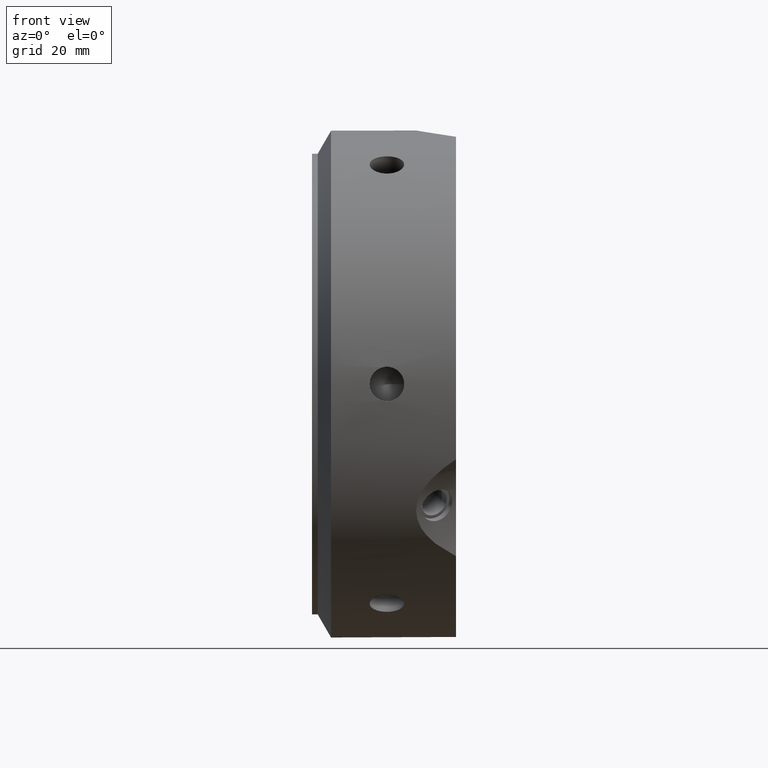
[diagram: clean part render]
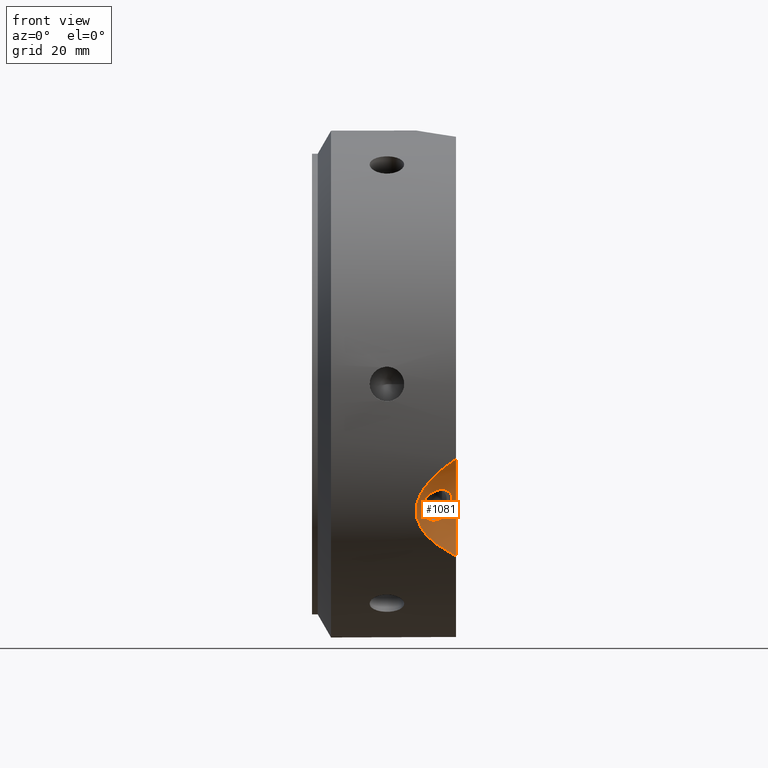
[diagram: same view with one face highlighted and labeled with its STEP entity id]
A machine part, front view. The second image highlights one B-rep face of the part: STEP entity #1081.
In plain terms, the highlighted cylindrical surface (partial cylindrical patch) has radius 20 mm, axis along (-0.866, -0.433, -0.25).
Its self-contained STEP definition (entity closure, byte-faithful):
#985=CARTESIAN_POINT('',(21.81247336968881,-34.943710054533199,-23.696597048525678));
#986=VERTEX_POINT('',#985);
#987=CARTESIAN_POINT('',(21.81247336968881,-34.943710054533199,-23.696597048525678));
#988=CARTESIAN_POINT('',(22.144691152481823,-34.777601163136694,-23.600694035363116));
#989=CARTESIAN_POINT('',(22.492531710719959,-34.629753170844943,-23.426667146129034));
#990=CARTESIAN_POINT('',(23.120996924315325,-34.426927585184394,-22.949936497065782));
#991=CARTESIAN_POINT('',(23.401997002324613,-34.37240671364134,-22.64753356793571));
#992=CARTESIAN_POINT('',(23.841108176952453,-34.364637868806483,-22.018452590361459));
#993=CARTESIAN_POINT('',(24.028717986781444,-34.410939970609668,-21.649625891148673));
#994=CARTESIAN_POINT('',(24.276467167295522,-34.618756389377957,-20.902101883844342));
#995=CARTESIAN_POINT('',(24.336885557231327,-34.7807709219326,-20.523636240870545));
#996=CARTESIAN_POINT('',(24.336885557231327,-35.164375823591165,-19.859213061165448));
#997=CARTESIAN_POINT('',(24.276467167295522,-35.411129418588764,-19.529671538703965));
#998=CARTESIAN_POINT('',(24.028717986781444,-35.954595989468913,-18.975935237074964));
#999=CARTESIAN_POINT('',(23.841108176952453,-36.250858229679551,-18.751423091058399));
#1000=CARTESIAN_POINT('',(23.401997002324613,-36.799542759713837,-18.443610619256315));
#1001=CARTESIAN_POINT('',(23.120996924315325,-37.088691814290826,-18.339625614484032));
#1002=CARTESIAN_POINT('',(22.492531710719959,-37.602965459972516,-18.2769123996719));
#1003=CARTESIAN_POINT('',(22.144691152481826,-37.827601163136691,-18.317939072278037));
#1004=CARTESIAN_POINT('',(21.480255586895808,-38.1598189459297,-18.509745098603162));
#1005=CARTESIAN_POINT('',(21.120093460048786,-38.289184585308107,-18.673101196407465));
#1006=CARTESIAN_POINT('',(20.447311237579978,-38.425534657658503,-19.111452189966577));
#1007=CARTESIAN_POINT('',(20.13497623551531,-38.433053143118478,-19.386718278839041));
#1008=CARTESIAN_POINT('',(19.637193960766819,-38.352815337772363,-19.964988593240829));
#1009=CARTESIAN_POINT('',(19.418408986648604,-38.259750489535335,-20.306816808211995));
#1010=CARTESIAN_POINT('',(19.126709320335632,-37.986008342068708,-21.016278578305815));
#1011=CARTESIAN_POINT('',(19.054130594146251,-37.805753305133706,-21.38421306116545));
#1012=CARTESIAN_POINT('',(19.054130594146251,-37.422148403475141,-22.04863624087055));
#1013=CARTESIAN_POINT('',(19.126709320335632,-37.193635312857907,-22.388708923446181));
#1014=CARTESIAN_POINT('',(19.418408986648604,-36.716094470676104,-22.980507462285701));
#1015=CARTESIAN_POINT('',(19.637193960766819,-36.466594976899295,-23.232018092543889));
#1016=CARTESIAN_POINT('',(20.13497623551531,-36.005917097045995,-23.590641227518432));
#1017=CARTESIAN_POINT('',(20.447311237579967,-35.763770428552071,-23.721763072548331));
#1018=CARTESIAN_POINT('',(21.120093460048782,-35.315972296180526,-23.822855942864607));
#1019=CARTESIAN_POINT('',(21.480255586895808,-35.109818945929696,-23.792500061688237));
#1020=CARTESIAN_POINT('',(21.812473369688817,-34.943710054533192,-23.696597048525675));
#1021=B_SPLINE_CURVE_WITH_KNOTS('',3,(#987,#988,#989,#990,#991,#992,#993,#994,#995,#996,#997,#998,#999,#1000,#1001,#1002,#1003,#1004,#1005,#1006,#1007,#1008,#1009,#1010,#1011,#1012,#1013,#1014,#1015,#1016,#1017,#1018,#1019,#1020),.UNSPECIFIED.,.T.,.U.,(4,2,2,2,2,2,2,2,2,2,2,2,2,2,2,2,4),(0.0,0.115083615795075,0.230167231590149,0.345248702087718,0.460330172585288,0.575411643082857,0.690493113580426,0.805576729375501,0.920660345170575,1.03574396096565,1.150827576760724,1.265909047258294,1.380990517755863,1.496071988253432,1.611153458751002,1.726237074546076,1.84132069034115),.UNSPECIFIED.);
#1022=EDGE_CURVE('',#986,#986,#1021,.T.);
#1039=CARTESIAN_POINT('',(28.32150757575118,-52.980262363501971,-30.588168737304848));
#1040=DIRECTION('',(-0.866025403784438,-0.43301270189222,-0.25));
#1041=DIRECTION('',(-0.5,0.75,0.433012701892219));
#1042=AXIS2_PLACEMENT_3D('',#1039,#1040,#1041);
#1043=CYLINDRICAL_SURFACE('',#1042,20.000000000000014);
#1044=CARTESIAN_POINT('',(24.999999999999986,-42.024462475996096,-13.036278364763351));
#1045=VERTEX_POINT('',#1044);
#1046=CARTESIAN_POINT('',(24.999999999999986,-32.301979472688572,-29.876112902216821));
#1047=VERTEX_POINT('',#1046);
#1048=CARTESIAN_POINT('',(24.999999999999993,-54.641016151377571,-31.547005383792509));
#1049=DIRECTION('',(-1.0,0.0,0.0));
#1050=DIRECTION('',(0.0,0.866025403784439,0.5));
#1051=AXIS2_PLACEMENT_3D('',#1048,#1049,#1050);
#1052=ELLIPSE('',#1051,23.094010767585047,20.000000000000011);
#1053=EDGE_CURVE('',#1045,#1047,#1052,.T.);
#1054=ORIENTED_EDGE('',*,*,#1053,.F.);
#1055=CARTESIAN_POINT('',(24.999999999999979,-32.301979472688565,-29.876112902216828));
#1056=CARTESIAN_POINT('',(24.376666182780035,-32.590337764459399,-29.564340629429964));
#1057=CARTESIAN_POINT('',(23.774628823260887,-32.886169427186694,-29.235504242196416));
#1058=CARTESIAN_POINT('',(21.90366000109314,-33.87458668116966,-28.099791824648115));
#1059=CARTESIAN_POINT('',(20.595581938138125,-34.68178519423298,-27.115451977279147));
#1060=CARTESIAN_POINT('',(19.154201130648236,-35.955937188094978,-25.371028613150955));
#1061=CARTESIAN_POINT('',(18.759557593973238,-36.391556658702243,-24.744326592999396));
#1062=CARTESIAN_POINT('',(18.218063369410423,-37.258376017995559,-23.418806784282879));
#1063=CARTESIAN_POINT('',(18.071796769724475,-37.68957135990761,-22.71974748914721));
#1064=CARTESIAN_POINT('',(18.071796769724475,-38.520664173123016,-21.280252510852776));
#1065=CARTESIAN_POINT('',(18.218063369410441,-38.910469610506119,-20.557296743195593));
#1066=CARTESIAN_POINT('',(18.759557593973259,-39.624993758427458,-19.143849253197168));
#1067=CARTESIAN_POINT('',(19.154201130648236,-39.949923893178109,-18.453240715192372));
#1068=CARTESIAN_POINT('',(20.595581938138125,-40.823562844537229,-16.47758103816119));
#1069=CARTESIAN_POINT('',(21.90366000109314,-41.272426901784385,-15.286356696266839));
#1070=CARTESIAN_POINT('',(23.774628823260887,-41.761774079783166,-13.862506036004582));
#1071=CARTESIAN_POINT('',(24.376666182780035,-41.898638913452473,-13.441890107222186));
#1072=CARTESIAN_POINT('',(24.999999999999972,-42.024462475996096,-13.036278364763323));
#1073=B_SPLINE_CURVE_WITH_KNOTS('',3,(#1055,#1056,#1057,#1058,#1059,#1060,#1061,#1062,#1063,#1064,#1065,#1066,#1067,#1068,#1069,#1070,#1071,#1072),.UNSPECIFIED.,.F.,.U.,(4,2,2,2,2,2,2,2,4),(2.21270391074662,2.434506557988923,2.933162245918167,3.182490089882789,3.431817933847412,3.681145777812034,3.930473621776656,4.429129309705901,4.650931956948202),.UNSPECIFIED.);
#1074=EDGE_CURVE('',#1047,#1045,#1073,.T.);
#1075=ORIENTED_EDGE('',*,*,#1074,.F.);
#1076=EDGE_LOOP('',(#1054,#1075));
#1077=FACE_OUTER_BOUND('',#1076,.T.);
#1078=ORIENTED_EDGE('',*,*,#1022,.F.);
#1079=EDGE_LOOP('',(#1078));
#1080=FACE_BOUND('',#1079,.T.);
#1081=ADVANCED_FACE('',(#1077,#1080),#1043,.F.);